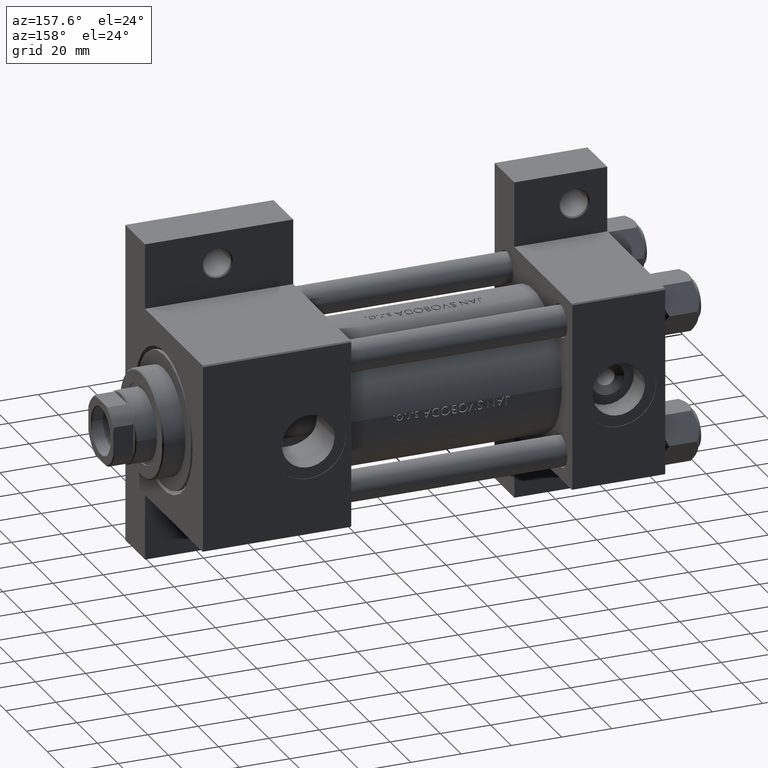
[diagram: clean part render]
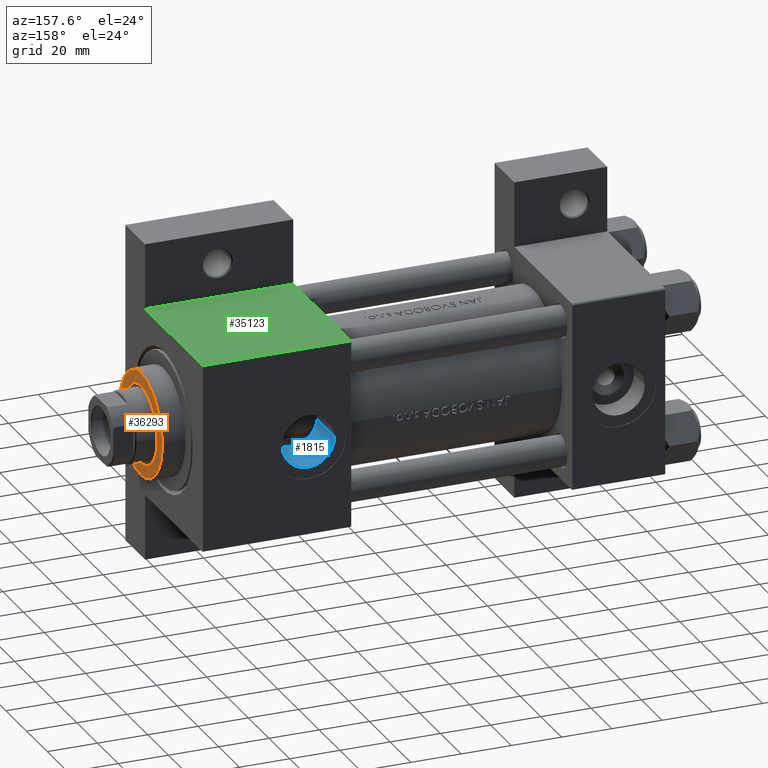
[diagram: same view with three faces highlighted in distinct colors, each labeled with its STEP entity id]
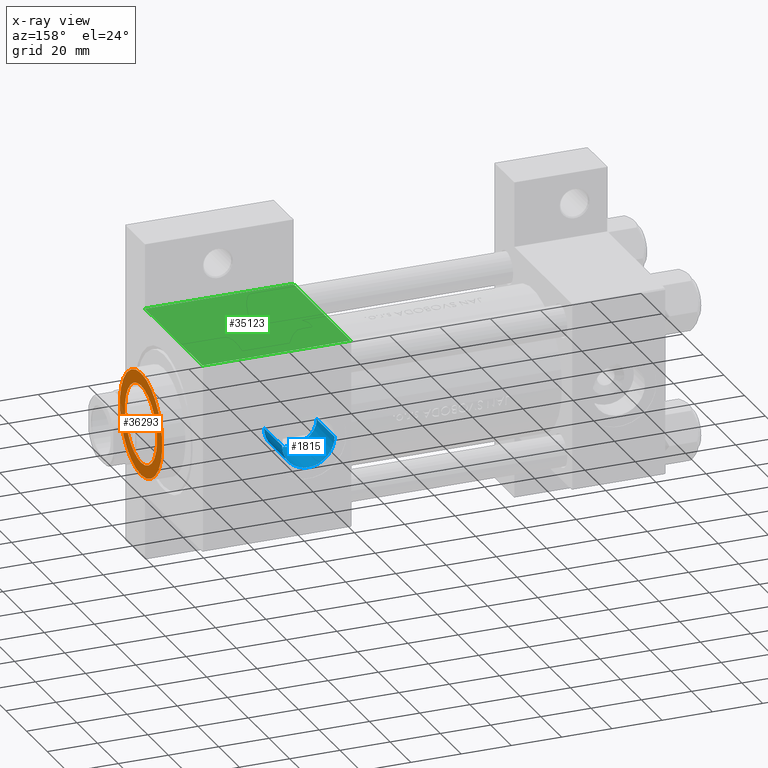
[diagram: x-ray of the same camera — body ghosted, the three highlighted faces saturated]
A machine part, auxiliary view with three faces highlighted in distinct colors.
The next image is the same camera in x-ray (body ghosted, the three faces saturated) — at least one of them is partly hidden behind the body in this view.
Their STEP definitions:

[orange] entity #36293 — the highlighted planar face has unit normal (1, 0, 0).
#527 = DIRECTION ( 'NONE',  ( 1.000000000000000000, 0.000000000000000000, 0.000000000000000000 ) ) ;
#2175 = DIRECTION ( 'NONE',  ( 1.000000000000000000, 0.000000000000000000, 0.000000000000000000 ) ) ;
#2202 = CARTESIAN_POINT ( 'NONE',  ( -20.49999999999999645, 0.000000000000000000, 37.69999999999999574 ) ) ;
#3598 = CARTESIAN_POINT ( 'NONE',  ( 0.000000000000000000, 0.000000000000000000, 37.69999999999999574 ) ) ;
#4129 = CARTESIAN_POINT ( 'NONE',  ( 0.000000000000000000, 0.000000000000000000, 37.69999999999999574 ) ) ;
#5742 = VERTEX_POINT ( 'NONE', #23474 ) ;
#6167 = EDGE_CURVE ( 'NONE', #19000, #11239, #36869, .T. ) ;
#6259 = CARTESIAN_POINT ( 'NONE',  ( 0.000000000000000000, 0.000000000000000000, 37.69999999999999574 ) ) ;
#6643 = CARTESIAN_POINT ( 'NONE',  ( 15.50000000000000000, 0.000000000000000000, 37.69999999999999574 ) ) ;
#7600 = DIRECTION ( 'NONE',  ( 1.000000000000000000, 0.000000000000000000, -0.000000000000000000 ) ) ;
#7836 = DIRECTION ( 'NONE',  ( 0.000000000000000000, 0.000000000000000000, 1.000000000000000000 ) ) ;
#9797 = AXIS2_PLACEMENT_3D ( 'NONE', #35848, #13989, #10394 ) ;
#10394 = DIRECTION ( 'NONE',  ( 1.000000000000000000, 0.000000000000000000, 0.000000000000000000 ) ) ;
#10824 = DIRECTION ( 'NONE',  ( 1.000000000000000000, 0.000000000000000000, 0.000000000000000000 ) ) ;
#11239 = VERTEX_POINT ( 'NONE', #33011 ) ;
#12750 = ORIENTED_EDGE ( 'NONE', *, *, #25576, .T. ) ;
#13989 = DIRECTION ( 'NONE',  ( 0.000000000000000000, 0.000000000000000000, 1.000000000000000000 ) ) ;
#14197 = EDGE_CURVE ( 'NONE', #11239, #19000, #43846, .T. ) ;
#15129 = CIRCLE ( 'NONE', #9797, 20.49999999999999645 ) ;
#15515 = FACE_BOUND ( 'NONE', #27937, .T. ) ;
#16303 = ORIENTED_EDGE ( 'NONE', *, *, #37362, .T. ) ;
#18516 = AXIS2_PLACEMENT_3D ( 'NONE', #3598, #29076, #10824 ) ;
#18658 = FACE_OUTER_BOUND ( 'NONE', #22627, .T. ) ;
#19000 = VERTEX_POINT ( 'NONE', #6643 ) ;
#20694 = ORIENTED_EDGE ( 'NONE', *, *, #14197, .F. ) ;
#21368 = AXIS2_PLACEMENT_3D ( 'NONE', #44368, #7836, #7600 ) ;
#22627 = EDGE_LOOP ( 'NONE', ( #12750, #16303 ) ) ;
#23474 = CARTESIAN_POINT ( 'NONE',  ( 20.49999999999999645, 2.541142108230757480E-15, 37.69999999999999574 ) ) ;
#24839 = ORIENTED_EDGE ( 'NONE', *, *, #6167, .F. ) ;
#24898 = AXIS2_PLACEMENT_3D ( 'NONE', #6259, #35330, #2175 ) ;
#25576 = EDGE_CURVE ( 'NONE', #26926, #5742, #36407, .T. ) ;
#26926 = VERTEX_POINT ( 'NONE', #2202 ) ;
#27937 = EDGE_LOOP ( 'NONE', ( #24839, #20694 ) ) ;
#29076 = DIRECTION ( 'NONE',  ( 0.000000000000000000, 0.000000000000000000, 1.000000000000000000 ) ) ;
#30164 = PLANE ( 'NONE',  #21368 ) ;
#33011 = CARTESIAN_POINT ( 'NONE',  ( -15.50000000000000000, 1.898202538678397557E-15, 37.69999999999999574 ) ) ;
#33446 = DIRECTION ( 'NONE',  ( 0.000000000000000000, 0.000000000000000000, 1.000000000000000000 ) ) ;
#35330 = DIRECTION ( 'NONE',  ( 0.000000000000000000, 0.000000000000000000, 1.000000000000000000 ) ) ;
#35848 = CARTESIAN_POINT ( 'NONE',  ( 0.000000000000000000, 0.000000000000000000, 37.69999999999999574 ) ) ;
#36293 = ADVANCED_FACE ( 'NONE', ( #15515, #18658 ), #30164, .T. ) ;
#36407 = CIRCLE ( 'NONE', #24898, 20.49999999999999645 ) ;
#36869 = CIRCLE ( 'NONE', #41484, 15.50000000000000000 ) ;
#37362 = EDGE_CURVE ( 'NONE', #5742, #26926, #15129, .T. ) ;
#41484 = AXIS2_PLACEMENT_3D ( 'NONE', #4129, #33446, #527 ) ;
#43846 = CIRCLE ( 'NONE', #18516, 15.50000000000000000 ) ;
#44368 = CARTESIAN_POINT ( 'NONE',  ( 0.000000000000000000, 0.000000000000000000, 37.69999999999999574 ) ) ;

[blue] entity #1815 — the highlighted cylindrical surface (edge-blend (fillet) strip) has radius 10.48 mm, axis along (0, -1, 0).
#59 = VERTEX_POINT ( 'NONE', #39140 ) ;
#97 = CARTESIAN_POINT ( 'NONE',  ( 135.6065573369534150, 8.310725173485073114, 18.24129753657673447 ) ) ;
#568 = CARTESIAN_POINT ( 'NONE',  ( 148.3998192419225290, 8.305855936120723371, 18.24346718738527073 ) ) ;
#1043 = CARTESIAN_POINT ( 'NONE',  ( 151.0774436320738232, 5.281939122741829529, 19.31671541206548781 ) ) ;
#1815 = ADVANCED_FACE ( 'NONE', ( #45587 ), #9305, .F. ) ;
#3201 = CIRCLE ( 'NONE', #5503, 10.47999999999998977 ) ;
#3931 = CARTESIAN_POINT ( 'NONE',  ( 142.3383151790433772, 10.48035382919964320, 17.11851820641091138 ) ) ;
#4173 = CARTESIAN_POINT ( 'NONE',  ( 138.5827044152010217, 9.913257743980482317, 17.44410793545391769 ) ) ;
#4412 = CARTESIAN_POINT ( 'NONE',  ( 152.2039809949709763, 2.414784284089436461, 19.86018829921812312 ) ) ;
#4653 = CARTESIAN_POINT ( 'NONE',  ( 136.7250863903656466, 9.081045908839902481, 17.88365106881857614 ) ) ;
#5503 = AXIS2_PLACEMENT_3D ( 'NONE', #17204, #31844, #46526 ) ;
#6220 = EDGE_CURVE ( 'NONE', #11352, #59, #29843, .T. ) ;
#7324 = CARTESIAN_POINT ( 'NONE',  ( 133.4994615249996457, 6.139005141183915271, 19.06143105420017392 ) ) ;
#7557 = CARTESIAN_POINT ( 'NONE',  ( 152.4800000000000466, 0.6967823640872994329, 20.00000000000000711 ) ) ;
#8825 = DIRECTION ( 'NONE',  ( 0.000000000000000000, 0.000000000000000000, -1.000000000000000000 ) ) ;
#9305 = CYLINDRICAL_SURFACE ( 'NONE', #39802, 10.47999999999998977 ) ;
#11216 = EDGE_CURVE ( 'NONE', #33644, #59, #46282, .T. ) ;
#11352 = VERTEX_POINT ( 'NONE', #30272 ) ;
#11401 = CARTESIAN_POINT ( 'NONE',  ( 145.4073549067260558, 9.916634395335897523, 17.44223718521385535 ) ) ;
#11634 = CARTESIAN_POINT ( 'NONE',  ( 144.7469934192376968, 10.11947292826132916, 17.32862250975705365 ) ) ;
#12116 = CARTESIAN_POINT ( 'NONE',  ( 139.5844666488367523, 10.20370056431729289, 17.28034809007780126 ) ) ;
#13331 = ORIENTED_EDGE ( 'NONE', *, *, #6220, .F. ) ;
#13581 = CARTESIAN_POINT ( 'NONE',  ( 134.3608080663192368, 7.182330360178228013, 18.70231315409301587 ) ) ;
#14294 = CARTESIAN_POINT ( 'NONE',  ( 131.5905792072285010, 1.397808168755529268, 19.96366514614362586 ) ) ;
#14477 = EDGE_CURVE ( 'NONE', #42756, #11352, #3201, .T. ) ;
#14991 = CARTESIAN_POINT ( 'NONE',  ( 149.1715154115444761, 7.649352566110279028, 18.52110086963149982 ) ) ;
#15238 = CARTESIAN_POINT ( 'NONE',  ( 149.8841991131332065, 6.936938536499972940, 18.79736706481581621 ) ) ;
#15471 = CARTESIAN_POINT ( 'NONE',  ( 139.2453258533809901, 10.11742845580952732, 17.32978771997537137 ) ) ;
#17195 = CARTESIAN_POINT ( 'NONE',  ( 131.7963906697739844, 2.415912636154256443, 19.86000321358038434 ) ) ;
#17204 = CARTESIAN_POINT ( 'NONE',  ( 142.0000000000000284, -6.938893903907226011E-15, 37.29999999999998295 ) ) ;
#17620 = EDGE_CURVE ( 'NONE', #42756, #33644, #36623, .T. ) ;
#18612 = CARTESIAN_POINT ( 'NONE',  ( 144.4123314728800835, 10.20445256356847352, 17.27991583748154625 ) ) ;
#19327 = CARTESIAN_POINT ( 'NONE',  ( 146.6856175630587984, 9.399358022566010717, 17.72067190218962907 ) ) ;
#21560 = VECTOR ( 'NONE', #37057, 1000.000000000000000 ) ;
#21986 = CARTESIAN_POINT ( 'NONE',  ( 150.3133438460494062, 6.417723730979722596, 18.97855006749639628 ) ) ;
#22210 = CARTESIAN_POINT ( 'NONE',  ( 140.6027042192150418, 10.40949522351231238, 17.16118746953340946 ) ) ;
#22686 = CARTESIAN_POINT ( 'NONE',  ( 134.8361938724689253, 7.656566108217122135, 18.51819379702216395 ) ) ;
#22927 = CARTESIAN_POINT ( 'NONE',  ( 143.7337807232017326, 10.34138286985939992, 17.20062314295813621 ) ) ;
#25352 = CARTESIAN_POINT ( 'NONE',  ( 132.6044737504641375, 4.693145010131112294, 19.46599966668495796 ) ) ;
#25585 = CARTESIAN_POINT ( 'NONE',  ( 131.5200000000000387, -7.489191664849202350E-15, 20.00000000000000000 ) ) ;
#25816 = CARTESIAN_POINT ( 'NONE',  ( 138.2605295482912595, 9.796046444661101305, 17.50860180445793191 ) ) ;
#26290 = CARTESIAN_POINT ( 'NONE',  ( 145.7346670001018083, 9.797999703728073939, 17.50755135371406013 ) ) ;
#26534 = CARTESIAN_POINT ( 'NONE',  ( 135.8804737050766391, 8.514500867498460579, 18.14931045191755032 ) ) ;
#26536 = ORIENTED_EDGE ( 'NONE', *, *, #17620, .T. ) ;
#26771 = CARTESIAN_POINT ( 'NONE',  ( 147.2820573345585444, 9.076872237721239856, 17.88571804596835335 ) ) ;
#27316 = DIRECTION ( 'NONE',  ( -1.000000000000000000, 0.000000000000000000, 0.000000000000000000 ) ) ;
#28945 = CARTESIAN_POINT ( 'NONE',  ( 132.0867390608468952, 3.417436119877225398, 19.71594434548825348 ) ) ;
#29407 = CARTESIAN_POINT ( 'NONE',  ( 142.6923943345972248, 10.46297416512449097, 17.12889126461536193 ) ) ;
#29843 = LINE ( 'NONE', #44521, #21560 ) ;
#29881 = CARTESIAN_POINT ( 'NONE',  ( 137.3192332810963308, 9.401270326070074290, 17.71963709424768396 ) ) ;
#30272 = CARTESIAN_POINT ( 'NONE',  ( 152.4800000000000182, -5.655464058400802100E-15, 37.29999999999998295 ) ) ;
#31344 = EDGE_LOOP ( 'NONE', ( #13331, #37707, #26536, #43096 ) ) ;
#31833 = CARTESIAN_POINT ( 'NONE',  ( 134.1344073689296295, 6.933755718105397037, 18.79375335859578300 ) ) ;
#31844 = DIRECTION ( 'NONE',  ( -0.000000000000000000, -0.000000000000000000, -1.000000000000000000 ) ) ;
#33484 = CARTESIAN_POINT ( 'NONE',  ( 152.4111999661128038, 1.387573566795230473, 19.96456553337858963 ) ) ;
#33644 = VERTEX_POINT ( 'NONE', #44172 ) ;
#33962 = CARTESIAN_POINT ( 'NONE',  ( 135.0851776230416021, 7.882226429758160791, 18.42550904926251931 ) ) ;
#35440 = CARTESIAN_POINT ( 'NONE',  ( 133.7041966693601012, 6.412812401408066521, 18.97310258086861978 ) ) ;
#36386 = CARTESIAN_POINT ( 'NONE',  ( 131.5200000000000387, -6.938893903907226011E-15, 60.29999999999998295 ) ) ;
#36623 = LINE ( 'NONE', #36386, #42466 ) ;
#37057 = DIRECTION ( 'NONE',  ( 0.000000000000000000, 0.000000000000000000, -1.000000000000000000 ) ) ;
#37338 = CARTESIAN_POINT ( 'NONE',  ( 148.1258991483475711, 8.509911541881283625, 18.15140651454458975 ) ) ;
#37707 = ORIENTED_EDGE ( 'NONE', *, *, #14477, .F. ) ;
#39140 = CARTESIAN_POINT ( 'NONE',  ( 152.4800000000000182, 2.510525976799935376E-15, 20.00000000000000000 ) ) ;
#39767 = CARTESIAN_POINT ( 'NONE',  ( 131.8817856378111912, 2.751972056903262409, 19.81723222319772759 ) ) ;
#39802 = AXIS2_PLACEMENT_3D ( 'NONE', #42697, #8825, #27316 ) ;
#40003 = CARTESIAN_POINT ( 'NONE',  ( 132.9281433422188172, 5.291159677655620008, 19.31417435353765910 ) ) ;
#40335 = CARTESIAN_POINT ( 'NONE',  ( 131.5200000000000387, -6.938893903907226011E-15, 37.29999999999998295 ) ) ;
#40473 = CARTESIAN_POINT ( 'NONE',  ( 143.3898925283613153, 10.39333618499133927, 17.17003674431505189 ) ) ;
#40705 = DIRECTION ( 'NONE',  ( 0.000000000000000000, 0.000000000000000000, -1.000000000000000000 ) ) ;
#40710 = CARTESIAN_POINT ( 'NONE',  ( 152.1171069833620493, 2.755736371050363065, 19.81668327404119267 ) ) ;
#40950 = CARTESIAN_POINT ( 'NONE',  ( 151.9134797944147692, 3.416556018164091935, 19.71605419410973425 ) ) ;
#41427 = CARTESIAN_POINT ( 'NONE',  ( 148.9223547581159721, 7.875654497479071203, 18.42825589621287463 ) ) ;
#42466 = VECTOR ( 'NONE', #40705, 1000.000000000000000 ) ;
#42697 = CARTESIAN_POINT ( 'NONE',  ( 142.0000000000000284, -6.938893903907226011E-15, 60.29999999999998295 ) ) ;
#42756 = VERTEX_POINT ( 'NONE', #40335 ) ;
#43096 = ORIENTED_EDGE ( 'NONE', *, *, #11216, .T. ) ;
#43628 = CARTESIAN_POINT ( 'NONE',  ( 132.2055746244945453, 3.743983501781734891, 19.65779689679483866 ) ) ;
#44087 = CARTESIAN_POINT ( 'NONE',  ( 141.2910039798671846, 10.47927568230744200, 17.11915951098718480 ) ) ;
#44172 = CARTESIAN_POINT ( 'NONE',  ( 131.5200000000000387, -7.489191664849202350E-15, 20.00000000000000000 ) ) ;
#44326 = CARTESIAN_POINT ( 'NONE',  ( 151.7963195694986496, 3.738835649269065975, 19.65872255796546497 ) ) ;
#44521 = CARTESIAN_POINT ( 'NONE',  ( 152.4800000000000182, -5.655464058400801311E-15, 60.29999999999998295 ) ) ;
#44559 = CARTESIAN_POINT ( 'NONE',  ( 151.4004974859918775, 4.682576587287050174, 19.46836060444810101 ) ) ;
#45043 = CARTESIAN_POINT ( 'NONE',  ( 152.4800000000000182, 2.510525976799935376E-15, 20.00000000000000000 ) ) ;
#45587 = FACE_OUTER_BOUND ( 'NONE', #31344, .T. ) ;
#46282 = B_SPLINE_CURVE_WITH_KNOTS ( 'NONE', 3,
 ( #25585, #47224, #14294, #17195, #39767, #28945, #43628, #25352, #40003, #7324, #35440, #31833, #13581, #22686, #33962, #97, #26534, #4653, #29881, #25816, #4173, #15471, #12116, #22210, #44087, #3931, #29407, #40473, #22927, #18612, #11634, #11401, #26290, #19327, #26771, #37338, #568, #41427, #14991, #15238, #21986, #1043, #44559, #44326, #40950, #40710, #4412, #33484, #7557, #45043 ),
 .UNSPECIFIED., .F., .F.,
 ( 4, 2, 2, 2, 2, 2, 2, 2, 2, 2, 2, 2, 2, 2, 2, 2, 2, 2, 2, 2, 2, 2, 2, 2, 4 ),
 ( 5.335803957031592477E-19, 0.002085371848011759698, 0.003128057772017647786, 0.004170743696023536742, 0.006256115544035280827, 0.007298801468041152436, 0.008341487392047023178, 0.009384173316052891317, 0.01042685924005876119, 0.01251223108807049920, 0.01355491701207640551, 0.01459760293608231008, 0.01668297478409420248, 0.01772566070810010705, 0.01876834663210601162, 0.01981103255611191619, 0.02085371848011782422, 0.02293909032812962989, 0.02398177625213553446, 0.02502446217614143209, 0.02710983402415324470, 0.02919520587216505036, 0.03023789179617095146, 0.03128057772017685256, 0.03336594956818866170 ),
 .UNSPECIFIED. ) ;
#46526 = DIRECTION ( 'NONE',  ( 1.000000000000000000, 0.000000000000000000, 0.000000000000000000 ) ) ;
#47224 = CARTESIAN_POINT ( 'NONE',  ( 131.5200000000000102, 0.7059292743811336202, 19.99999999999999645 ) ) ;

[green] entity #35123 — the highlighted planar face has unit normal (0, -0, -1).
#68 = ORIENTED_EDGE ( 'NONE', *, *, #29817, .T. ) ;
#5565 = VECTOR ( 'NONE', #17241, 1000.000000000000000 ) ;
#6421 = LINE ( 'NONE', #35487, #5565 ) ;
#6551 = LINE ( 'NONE', #11033, #15711 ) ;
#6990 = LINE ( 'NONE', #36288, #16342 ) ;
#11033 = CARTESIAN_POINT ( 'NONE',  ( 184.0000000000000000, -37.50000000000000000, 37.49999999999997868 ) ) ;
#13755 = ORIENTED_EDGE ( 'NONE', *, *, #17121, .T. ) ;
#15711 = VECTOR ( 'NONE', #39464, 1000.000000000000000 ) ;
#16342 = VECTOR ( 'NONE', #33143, 1000.000000000000000 ) ;
#17121 = EDGE_CURVE ( 'NONE', #33086, #29135, #6421, .T. ) ;
#17241 = DIRECTION ( 'NONE',  ( 1.000000000000000000, -3.528251137579946599E-16, 0.000000000000000000 ) ) ;
#18827 = DIRECTION ( 'NONE',  ( 0.000000000000000000, 1.000000000000000000, -9.251858538542972814E-17 ) ) ;
#20675 = VERTEX_POINT ( 'NONE', #44331 ) ;
#21822 = CARTESIAN_POINT ( 'NONE',  ( 125.0000000000000000, -37.50000000000000000, -18.50000000000000000 ) ) ;
#22122 = EDGE_CURVE ( 'NONE', #20675, #33086, #6990, .T. ) ;
#22661 = PLANE ( 'NONE',  #35884 ) ;
#22731 = LINE ( 'NONE', #40753, #30394 ) ;
#26345 = ORIENTED_EDGE ( 'NONE', *, *, #22122, .T. ) ;
#28200 = EDGE_LOOP ( 'NONE', ( #31551, #68, #26345, #13755 ) ) ;
#29135 = VERTEX_POINT ( 'NONE', #44772 ) ;
#29817 = EDGE_CURVE ( 'NONE', #44578, #20675, #22731, .T. ) ;
#30332 = DIRECTION ( 'NONE',  ( 0.000000000000000000, 9.251858538542972814E-17, 1.000000000000000000 ) ) ;
#30394 = VECTOR ( 'NONE', #41472, 1000.000000000000000 ) ;
#31551 = ORIENTED_EDGE ( 'NONE', *, *, #43616, .F. ) ;
#33086 = VERTEX_POINT ( 'NONE', #21822 ) ;
#33143 = DIRECTION ( 'NONE',  ( 0.000000000000000000, -9.251858538542972814E-17, -1.000000000000000000 ) ) ;
#33700 = FACE_OUTER_BOUND ( 'NONE', #28200, .T. ) ;
#33939 = CARTESIAN_POINT ( 'NONE',  ( 184.0000000000000000, -37.50000000000000000, 37.49999999999997868 ) ) ;
#35123 = ADVANCED_FACE ( 'NONE', ( #33700 ), #22661, .F. ) ;
#35487 = CARTESIAN_POINT ( 'NONE',  ( 125.0000000000000000, -37.50000000000000000, -18.50000000000000000 ) ) ;
#35884 = AXIS2_PLACEMENT_3D ( 'NONE', #33939, #18827, #30332 ) ;
#36288 = CARTESIAN_POINT ( 'NONE',  ( 125.0000000000000000, -37.50000000000000000, 37.49999999999997868 ) ) ;
#39464 = DIRECTION ( 'NONE',  ( 0.000000000000000000, -9.251858538542972814E-17, -1.000000000000000000 ) ) ;
#40753 = CARTESIAN_POINT ( 'NONE',  ( 184.0000000000000000, -37.50000000000000000, 36.99999999999995026 ) ) ;
#41472 = DIRECTION ( 'NONE',  ( -1.000000000000000000, 0.000000000000000000, 0.000000000000000000 ) ) ;
#43616 = EDGE_CURVE ( 'NONE', #44578, #29135, #6551, .T. ) ;
#44331 = CARTESIAN_POINT ( 'NONE',  ( 125.0000000000000000, -37.50000000000000000, 36.99999999999995026 ) ) ;
#44555 = CARTESIAN_POINT ( 'NONE',  ( 184.0000000000000000, -37.50000000000000000, 36.99999999999995026 ) ) ;
#44578 = VERTEX_POINT ( 'NONE', #44555 ) ;
#44772 = CARTESIAN_POINT ( 'NONE',  ( 184.0000000000000000, -37.50000000000000711, -18.50000000000000355 ) ) ;